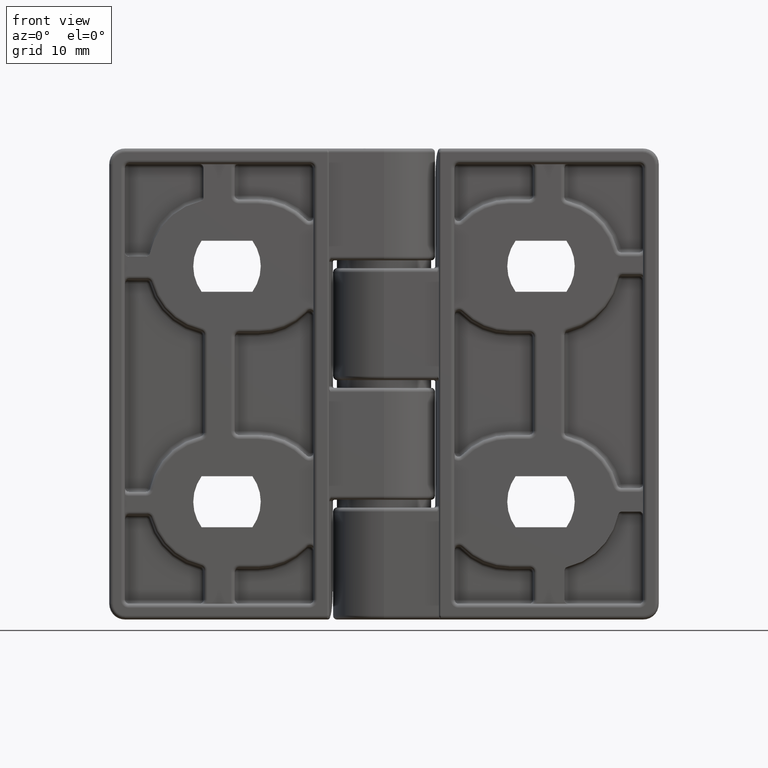
[diagram: clean part render]
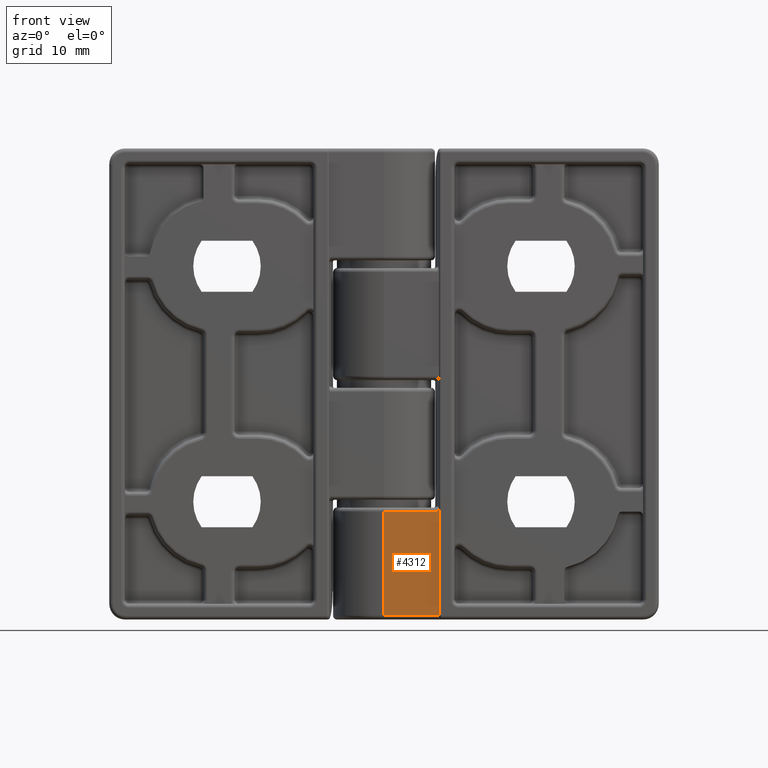
[diagram: same view with one face highlighted and labeled with its STEP entity id]
A machine part, front view. The second image highlights one B-rep face of the part: STEP entity #4312.
In plain terms, the highlighted planar face has unit normal (0, -1, 0).
Its self-contained STEP definition (entity closure, byte-faithful):
#111=B_SPLINE_CURVE_WITH_KNOTS('',3,(#7812,#7813,#7814,#7815,#7816,#7817,
#7818,#7819,#7820,#7821,#7822,#7823,#7824,#7825),.UNSPECIFIED.,.F.,.F.,
(4,2,2,2,2,2,4),(0.,0.25,0.429908349107033,0.5,0.75,0.804405346967977,1.),
 .UNSPECIFIED.);
#197=PLANE('',#4884);
#434=LINE('',#7769,#692);
#439=LINE('',#7808,#697);
#440=LINE('',#7810,#698);
#441=LINE('',#7811,#699);
#692=VECTOR('',#6225,13.7501764170994);
#697=VECTOR('',#6240,6.79861537157579);
#698=VECTOR('',#6241,13.25);
#699=VECTOR('',#6242,6.99999999981413);
#1082=FACE_OUTER_BOUND('',#1383,.T.);
#1383=EDGE_LOOP('',(#3782,#3783,#3784,#3785,#3786));
#2081=VERTEX_POINT('',#7766);
#2082=VERTEX_POINT('',#7768);
#2089=VERTEX_POINT('',#7806);
#2090=VERTEX_POINT('',#7807);
#2091=VERTEX_POINT('',#7809);
#2655=EDGE_CURVE('',#2081,#2082,#434,.T.);
#2665=EDGE_CURVE('',#2089,#2090,#439,.T.);
#2666=EDGE_CURVE('',#2091,#2090,#440,.T.);
#2667=EDGE_CURVE('',#2091,#2082,#441,.T.);
#2668=EDGE_CURVE('',#2081,#2089,#111,.T.);
#3782=ORIENTED_EDGE('',*,*,#2665,.T.);
#3783=ORIENTED_EDGE('',*,*,#2666,.F.);
#3784=ORIENTED_EDGE('',*,*,#2667,.T.);
#3785=ORIENTED_EDGE('',*,*,#2655,.F.);
#3786=ORIENTED_EDGE('',*,*,#2668,.T.);
#4312=ADVANCED_FACE('',(#1082),#197,.T.);
#4884=AXIS2_PLACEMENT_3D('',#7805,#6238,#6239);
#6225=DIRECTION('',(0.,-1.,0.));
#6238=DIRECTION('center_axis',(0.,0.,1.));
#6239=DIRECTION('ref_axis',(1.,0.,0.));
#6240=DIRECTION('',(-0.99999999999982,9.68634983519081E-11,6.0003313065959E-7));
#6241=DIRECTION('',(0.,1.,0.));
#6242=DIRECTION('',(1.,0.,0.));
#7766=CARTESIAN_POINT('',(6.99999970512215,-15.7498235829006,6.50000473484927));
#7768=CARTESIAN_POINT('',(7.,-29.5,6.5));
#7769=CARTESIAN_POINT('',(7.,-30.,6.5));
#7805=CARTESIAN_POINT('Origin',(0.,-30.,6.5));
#7806=CARTESIAN_POINT('',(6.79861537157293,-16.250000001099,6.49999320100219));
#7807=CARTESIAN_POINT('',(0.,-16.25,6.5));
#7808=CARTESIAN_POINT('',(6.798615371582,-16.25000000066,6.499995920606));
#7809=CARTESIAN_POINT('',(1.858673207257E-10,-29.5,6.5));
#7810=CARTESIAN_POINT('',(1.858673207257E-10,-29.5,6.5));
#7811=CARTESIAN_POINT('',(1.858673207257E-10,-29.5,6.5));
#7812=CARTESIAN_POINT('Ctrl Pts',(7.00000116057302,-15.7498250825037,6.50000747626925));
#7813=CARTESIAN_POINT('Ctrl Pts',(7.00000403966796,-15.79008068278,6.50000656208142));
#7814=CARTESIAN_POINT('Ctrl Pts',(6.99489339128837,-15.8307088357907,6.50001176707597));
#7815=CARTESIAN_POINT('Ctrl Pts',(6.97833590512083,-15.9017946922364,6.49998546370411));
#7816=CARTESIAN_POINT('Ctrl Pts',(6.96902345268143,-15.9319209544889,6.49999601729089));
#7817=CARTESIAN_POINT('Ctrl Pts',(6.95321023693112,-15.9737894737025,6.49999627136977));
#7818=CARTESIAN_POINT('Ctrl Pts',(6.94846479841626,-15.9855322073312,6.49999551650446));
#7819=CARTESIAN_POINT('Ctrl Pts',(6.92548538625491,-16.0391294885024,6.50000622154341));
#7820=CARTESIAN_POINT('Ctrl Pts',(6.90384301550725,-16.0808326487084,6.50000031467961));
#7821=CARTESIAN_POINT('Ctrl Pts',(6.87403113130761,-16.1318627681817,6.49999855490748));
#7822=CARTESIAN_POINT('Ctrl Pts',(6.8685745450416,-16.1409983066273,6.50000068762202));
#7823=CARTESIAN_POINT('Ctrl Pts',(6.84294022564545,-16.1830658534921,6.50000095800755));
#7824=CARTESIAN_POINT('Ctrl Pts',(6.82126040553176,-16.216179521733,6.49998224705146));
#7825=CARTESIAN_POINT('Ctrl Pts',(6.79861537156217,-16.2500000019771,6.49998776179457));